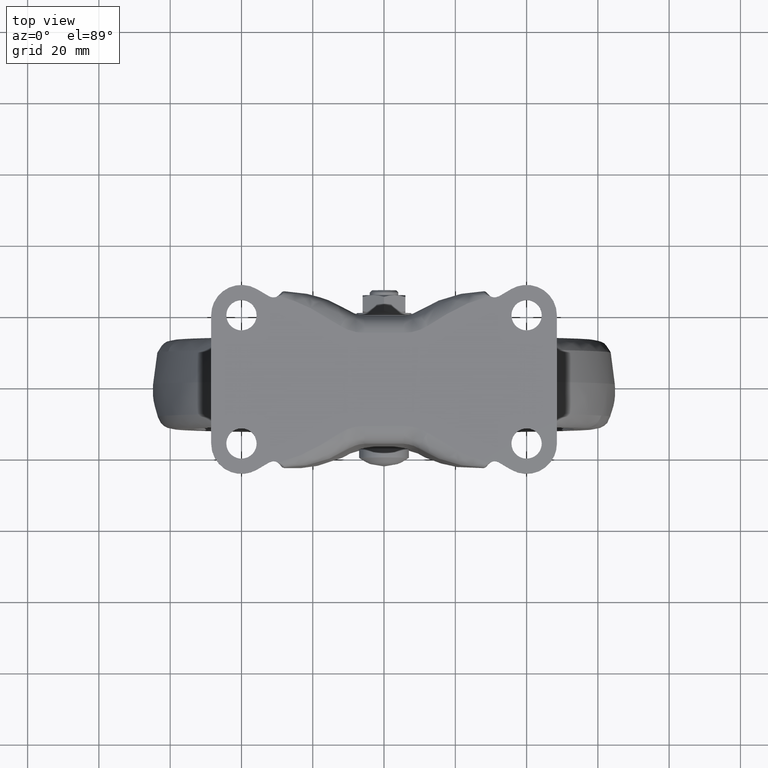
[diagram: clean part render]
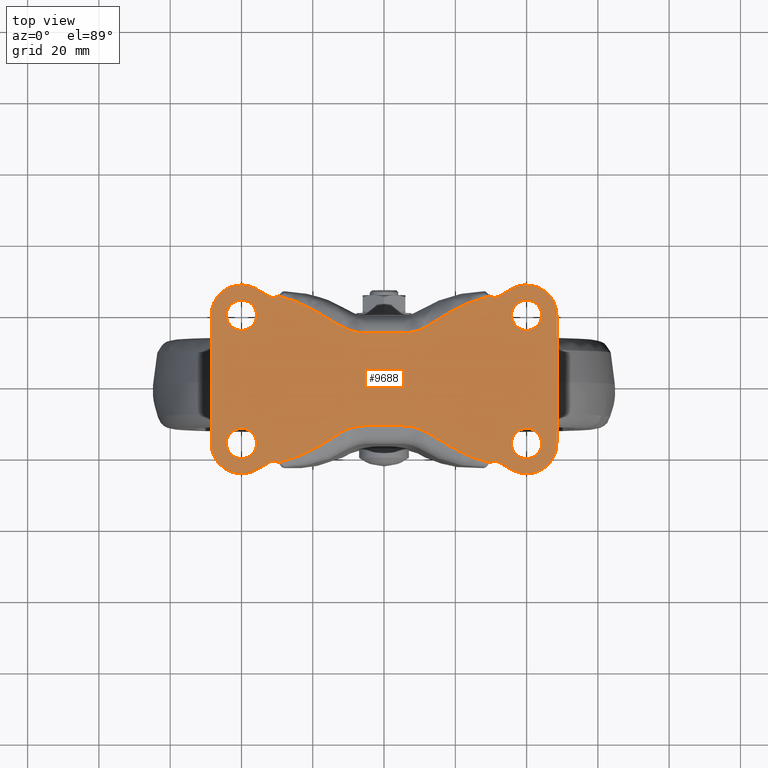
[diagram: same view with one face highlighted and labeled with its STEP entity id]
A machine part, top view. The second image highlights one B-rep face of the part: STEP entity #9688.
In plain terms, the highlighted face is a freeform B-spline surface patch.
Its self-contained STEP definition (entity closure, byte-faithful):
#5487=CARTESIAN_POINT('',(-40.259456293401172,13.757927106730190,-1.040834E-017));
#5488=VERTEX_POINT('',#5487);
#5494=CARTESIAN_POINT('',(-35.750000000000007,18.0,0.0));
#5495=VERTEX_POINT('',#5494);
#5496=CARTESIAN_POINT('',(-40.259456293401179,13.757927106730190,0.0));
#5497=CARTESIAN_POINT('',(-40.129849244208550,13.749999999999998,0.0));
#5498=CARTESIAN_POINT('',(-40.0,13.750000000000000,0.0));
#5499=CARTESIAN_POINT('',(-35.750000000000007,13.750000000000000,0.0));
#5500=CARTESIAN_POINT('',(-35.750000000000007,18.0,0.0));
#5508=(BOUNDED_CURVE()B_SPLINE_CURVE(2,(#5496,#5497,#5498,#5499,#5500),.UNSPECIFIED.,.F.,.U.)B_SPLINE_CURVE_WITH_KNOTS((3,2,3),(0.239332962226592,0.250000000000000,0.500000000000000),.UNSPECIFIED.)CURVE()GEOMETRIC_REPRESENTATION_ITEM()RATIONAL_B_SPLINE_CURVE((0.976072041640248,0.987502787885367,1.0,0.707106781186548,1.0))REPRESENTATION_ITEM(''));
#5509=EDGE_CURVE('',#5488,#5495,#5508,.T.);
#5511=CARTESIAN_POINT('',(-39.740543706598842,22.242072893269810,-1.040834E-017));
#5512=VERTEX_POINT('',#5511);
#5513=CARTESIAN_POINT('',(-35.750000000000007,18.0,0.0));
#5514=CARTESIAN_POINT('',(-35.750000000000014,21.998000783992257,0.0));
#5515=CARTESIAN_POINT('',(-39.740543706598828,22.242072893269814,0.0));
#5523=(BOUNDED_CURVE()B_SPLINE_CURVE(2,(#5513,#5514,#5515),.UNSPECIFIED.,.F.,.U.)B_SPLINE_CURVE_WITH_KNOTS((3,3),(0.500000000000000,0.739332962226592),.UNSPECIFIED.)CURVE()GEOMETRIC_REPRESENTATION_ITEM()RATIONAL_B_SPLINE_CURVE((1.0,0.719603993301180,0.976072041640247))REPRESENTATION_ITEM(''));
#5524=EDGE_CURVE('',#5495,#5512,#5523,.T.);
#5598=CARTESIAN_POINT('',(-44.250000000000000,18.0,0.0));
#5599=VERTEX_POINT('',#5598);
#5600=CARTESIAN_POINT('',(-39.740543706598842,22.242072893269814,0.0));
#5601=CARTESIAN_POINT('',(-39.870150755791471,22.250000000000000,0.0));
#5602=CARTESIAN_POINT('',(-40.0,22.250000000000000,0.0));
#5603=CARTESIAN_POINT('',(-44.250000000000000,22.249999999999996,0.0));
#5604=CARTESIAN_POINT('',(-44.250000000000000,18.0,0.0));
#5612=(BOUNDED_CURVE()B_SPLINE_CURVE(2,(#5600,#5601,#5602,#5603,#5604),.UNSPECIFIED.,.F.,.U.)B_SPLINE_CURVE_WITH_KNOTS((3,2,3),(0.739332962226592,0.750000000000000,1.0),.UNSPECIFIED.)CURVE()GEOMETRIC_REPRESENTATION_ITEM()RATIONAL_B_SPLINE_CURVE((0.976072041640248,0.987502787885368,1.0,0.707106781186548,1.0))REPRESENTATION_ITEM(''));
#5613=EDGE_CURVE('',#5512,#5599,#5612,.T.);
#5615=CARTESIAN_POINT('',(-44.250000000000000,18.0,0.0));
#5616=CARTESIAN_POINT('',(-44.249999999999986,14.001999216007741,0.0));
#5617=CARTESIAN_POINT('',(-40.259456293401179,13.757927106730188,0.0));
#5625=(BOUNDED_CURVE()B_SPLINE_CURVE(2,(#5615,#5616,#5617),.UNSPECIFIED.,.F.,.U.)B_SPLINE_CURVE_WITH_KNOTS((3,3),(0.0,0.239332962226592),.UNSPECIFIED.)CURVE()GEOMETRIC_REPRESENTATION_ITEM()RATIONAL_B_SPLINE_CURVE((1.0,0.719603993301181,0.976072041640247))REPRESENTATION_ITEM(''));
#5626=EDGE_CURVE('',#5599,#5488,#5625,.T.);
#5669=CARTESIAN_POINT('',(-40.259456293401172,-22.242072893269810,-1.040834E-017));
#5670=VERTEX_POINT('',#5669);
#5676=CARTESIAN_POINT('',(-35.750000000000007,-18.0,0.0));
#5677=VERTEX_POINT('',#5676);
#5678=CARTESIAN_POINT('',(-40.259456293401179,-22.242072893269810,0.0));
#5679=CARTESIAN_POINT('',(-40.129849244208550,-22.250000000000004,0.0));
#5680=CARTESIAN_POINT('',(-40.0,-22.250000000000000,0.0));
#5681=CARTESIAN_POINT('',(-35.750000000000007,-22.249999999999996,0.0));
#5682=CARTESIAN_POINT('',(-35.750000000000007,-18.0,0.0));
#5690=(BOUNDED_CURVE()B_SPLINE_CURVE(2,(#5678,#5679,#5680,#5681,#5682),.UNSPECIFIED.,.F.,.U.)B_SPLINE_CURVE_WITH_KNOTS((3,2,3),(0.239332962226592,0.250000000000000,0.500000000000000),.UNSPECIFIED.)CURVE()GEOMETRIC_REPRESENTATION_ITEM()RATIONAL_B_SPLINE_CURVE((0.976072041640247,0.987502787885367,1.0,0.707106781186548,1.0))REPRESENTATION_ITEM(''));
#5691=EDGE_CURVE('',#5670,#5677,#5690,.T.);
#5693=CARTESIAN_POINT('',(-39.740543706598842,-13.757927106730190,-1.040834E-017));
#5694=VERTEX_POINT('',#5693);
#5695=CARTESIAN_POINT('',(-35.750000000000007,-18.0,0.0));
#5696=CARTESIAN_POINT('',(-35.750000000000014,-14.001999216007748,0.0));
#5697=CARTESIAN_POINT('',(-39.740543706598828,-13.757927106730182,0.0));
#5705=(BOUNDED_CURVE()B_SPLINE_CURVE(2,(#5695,#5696,#5697),.UNSPECIFIED.,.F.,.U.)B_SPLINE_CURVE_WITH_KNOTS((3,3),(0.500000000000000,0.739332962226592),.UNSPECIFIED.)CURVE()GEOMETRIC_REPRESENTATION_ITEM()RATIONAL_B_SPLINE_CURVE((1.0,0.719603993301180,0.976072041640247))REPRESENTATION_ITEM(''));
#5706=EDGE_CURVE('',#5677,#5694,#5705,.T.);
#5780=CARTESIAN_POINT('',(-44.250000000000000,-18.0,0.0));
#5781=VERTEX_POINT('',#5780);
#5782=CARTESIAN_POINT('',(-39.740543706598842,-13.757927106730186,0.0));
#5783=CARTESIAN_POINT('',(-39.870150755791471,-13.749999999999996,0.0));
#5784=CARTESIAN_POINT('',(-40.0,-13.750000000000000,0.0));
#5785=CARTESIAN_POINT('',(-44.250000000000000,-13.750000000000000,0.0));
#5786=CARTESIAN_POINT('',(-44.250000000000000,-18.0,0.0));
#5794=(BOUNDED_CURVE()B_SPLINE_CURVE(2,(#5782,#5783,#5784,#5785,#5786),.UNSPECIFIED.,.F.,.U.)B_SPLINE_CURVE_WITH_KNOTS((3,2,3),(0.739332962226592,0.750000000000000,1.0),.UNSPECIFIED.)CURVE()GEOMETRIC_REPRESENTATION_ITEM()RATIONAL_B_SPLINE_CURVE((0.976072041640248,0.987502787885368,1.0,0.707106781186548,1.0))REPRESENTATION_ITEM(''));
#5795=EDGE_CURVE('',#5694,#5781,#5794,.T.);
#5797=CARTESIAN_POINT('',(-44.250000000000000,-18.0,0.0));
#5798=CARTESIAN_POINT('',(-44.249999999999986,-21.998000783992261,0.0));
#5799=CARTESIAN_POINT('',(-40.259456293401179,-22.242072893269814,0.0));
#5807=(BOUNDED_CURVE()B_SPLINE_CURVE(2,(#5797,#5798,#5799),.UNSPECIFIED.,.F.,.U.)B_SPLINE_CURVE_WITH_KNOTS((3,3),(0.0,0.239332962226592),.UNSPECIFIED.)CURVE()GEOMETRIC_REPRESENTATION_ITEM()RATIONAL_B_SPLINE_CURVE((1.0,0.719603993301181,0.976072041640247))REPRESENTATION_ITEM(''));
#5808=EDGE_CURVE('',#5781,#5670,#5807,.T.);
#5851=CARTESIAN_POINT('',(39.740543706598828,13.757927106730190,-1.040834E-017));
#5852=VERTEX_POINT('',#5851);
#5858=CARTESIAN_POINT('',(44.250000000000000,18.0,0.0));
#5859=VERTEX_POINT('',#5858);
#5860=CARTESIAN_POINT('',(39.740543706598828,13.757927106730186,0.0));
#5861=CARTESIAN_POINT('',(39.870150755791450,13.750000000000002,0.0));
#5862=CARTESIAN_POINT('',(40.0,13.750000000000000,0.0));
#5863=CARTESIAN_POINT('',(44.250000000000000,13.750000000000000,0.0));
#5864=CARTESIAN_POINT('',(44.250000000000000,18.0,0.0));
#5872=(BOUNDED_CURVE()B_SPLINE_CURVE(2,(#5860,#5861,#5862,#5863,#5864),.UNSPECIFIED.,.F.,.U.)B_SPLINE_CURVE_WITH_KNOTS((3,2,3),(0.239332962226592,0.250000000000000,0.500000000000000),.UNSPECIFIED.)CURVE()GEOMETRIC_REPRESENTATION_ITEM()RATIONAL_B_SPLINE_CURVE((0.976072041640247,0.987502787885367,1.0,0.707106781186548,1.0))REPRESENTATION_ITEM(''));
#5873=EDGE_CURVE('',#5852,#5859,#5872,.T.);
#5875=CARTESIAN_POINT('',(40.259456293401172,22.242072893269810,-1.040834E-017));
#5876=VERTEX_POINT('',#5875);
#5877=CARTESIAN_POINT('',(44.250000000000000,18.0,0.0));
#5878=CARTESIAN_POINT('',(44.249999999999993,21.998000783992257,0.0));
#5879=CARTESIAN_POINT('',(40.259456293401165,22.242072893269814,0.0));
#5887=(BOUNDED_CURVE()B_SPLINE_CURVE(2,(#5877,#5878,#5879),.UNSPECIFIED.,.F.,.U.)B_SPLINE_CURVE_WITH_KNOTS((3,3),(0.500000000000000,0.739332962226592),.UNSPECIFIED.)CURVE()GEOMETRIC_REPRESENTATION_ITEM()RATIONAL_B_SPLINE_CURVE((1.0,0.719603993301180,0.976072041640247))REPRESENTATION_ITEM(''));
#5888=EDGE_CURVE('',#5859,#5876,#5887,.T.);
#5962=CARTESIAN_POINT('',(35.750000000000007,18.0,0.0));
#5963=VERTEX_POINT('',#5962);
#5964=CARTESIAN_POINT('',(40.259456293401165,22.242072893269814,0.0));
#5965=CARTESIAN_POINT('',(40.129849244208543,22.250000000000004,0.0));
#5966=CARTESIAN_POINT('',(40.0,22.250000000000000,0.0));
#5967=CARTESIAN_POINT('',(35.750000000000007,22.249999999999996,0.0));
#5968=CARTESIAN_POINT('',(35.750000000000007,18.0,0.0));
#5976=(BOUNDED_CURVE()B_SPLINE_CURVE(2,(#5964,#5965,#5966,#5967,#5968),.UNSPECIFIED.,.F.,.U.)B_SPLINE_CURVE_WITH_KNOTS((3,2,3),(0.739332962226592,0.750000000000000,1.0),.UNSPECIFIED.)CURVE()GEOMETRIC_REPRESENTATION_ITEM()RATIONAL_B_SPLINE_CURVE((0.976072041640247,0.987502787885367,1.0,0.707106781186548,1.0))REPRESENTATION_ITEM(''));
#5977=EDGE_CURVE('',#5876,#5963,#5976,.T.);
#5979=CARTESIAN_POINT('',(35.750000000000007,18.0,0.0));
#5980=CARTESIAN_POINT('',(35.750000000000014,14.001999216007736,0.0));
#5981=CARTESIAN_POINT('',(39.740543706598835,13.757927106730181,0.0));
#5989=(BOUNDED_CURVE()B_SPLINE_CURVE(2,(#5979,#5980,#5981),.UNSPECIFIED.,.F.,.U.)B_SPLINE_CURVE_WITH_KNOTS((3,3),(0.0,0.239332962226592),.UNSPECIFIED.)CURVE()GEOMETRIC_REPRESENTATION_ITEM()RATIONAL_B_SPLINE_CURVE((1.0,0.719603993301180,0.976072041640247))REPRESENTATION_ITEM(''));
#5990=EDGE_CURVE('',#5963,#5852,#5989,.T.);
#6033=CARTESIAN_POINT('',(39.740543706598828,-22.242072893269810,-1.040834E-017));
#6034=VERTEX_POINT('',#6033);
#6040=CARTESIAN_POINT('',(44.250000000000000,-18.0,0.0));
#6041=VERTEX_POINT('',#6040);
#6042=CARTESIAN_POINT('',(39.740543706598828,-22.242072893269807,0.0));
#6043=CARTESIAN_POINT('',(39.870150755791450,-22.250000000000004,0.0));
#6044=CARTESIAN_POINT('',(40.0,-22.250000000000000,0.0));
#6045=CARTESIAN_POINT('',(44.250000000000000,-22.249999999999996,0.0));
#6046=CARTESIAN_POINT('',(44.250000000000000,-18.0,0.0));
#6054=(BOUNDED_CURVE()B_SPLINE_CURVE(2,(#6042,#6043,#6044,#6045,#6046),.UNSPECIFIED.,.F.,.U.)B_SPLINE_CURVE_WITH_KNOTS((3,2,3),(0.239332962226592,0.250000000000000,0.500000000000000),.UNSPECIFIED.)CURVE()GEOMETRIC_REPRESENTATION_ITEM()RATIONAL_B_SPLINE_CURVE((0.976072041640247,0.987502787885367,1.0,0.707106781186548,1.0))REPRESENTATION_ITEM(''));
#6055=EDGE_CURVE('',#6034,#6041,#6054,.T.);
#6057=CARTESIAN_POINT('',(40.259456293401172,-13.757927106730190,-1.040834E-017));
#6058=VERTEX_POINT('',#6057);
#6059=CARTESIAN_POINT('',(44.250000000000000,-18.0,0.0));
#6060=CARTESIAN_POINT('',(44.249999999999993,-14.001999216007748,0.0));
#6061=CARTESIAN_POINT('',(40.259456293401165,-13.757927106730182,0.0));
#6069=(BOUNDED_CURVE()B_SPLINE_CURVE(2,(#6059,#6060,#6061),.UNSPECIFIED.,.F.,.U.)B_SPLINE_CURVE_WITH_KNOTS((3,3),(0.500000000000000,0.739332962226592),.UNSPECIFIED.)CURVE()GEOMETRIC_REPRESENTATION_ITEM()RATIONAL_B_SPLINE_CURVE((1.0,0.719603993301180,0.976072041640247))REPRESENTATION_ITEM(''));
#6070=EDGE_CURVE('',#6041,#6058,#6069,.T.);
#6144=CARTESIAN_POINT('',(35.750000000000007,-18.0,0.0));
#6145=VERTEX_POINT('',#6144);
#6146=CARTESIAN_POINT('',(40.259456293401165,-13.757927106730182,0.0));
#6147=CARTESIAN_POINT('',(40.129849244208543,-13.749999999999998,0.0));
#6148=CARTESIAN_POINT('',(40.0,-13.750000000000000,0.0));
#6149=CARTESIAN_POINT('',(35.750000000000007,-13.750000000000000,0.0));
#6150=CARTESIAN_POINT('',(35.750000000000007,-18.0,0.0));
#6158=(BOUNDED_CURVE()B_SPLINE_CURVE(2,(#6146,#6147,#6148,#6149,#6150),.UNSPECIFIED.,.F.,.U.)B_SPLINE_CURVE_WITH_KNOTS((3,2,3),(0.739332962226592,0.750000000000000,1.0),.UNSPECIFIED.)CURVE()GEOMETRIC_REPRESENTATION_ITEM()RATIONAL_B_SPLINE_CURVE((0.976072041640247,0.987502787885367,1.0,0.707106781186548,1.0))REPRESENTATION_ITEM(''));
#6159=EDGE_CURVE('',#6058,#6145,#6158,.T.);
#6161=CARTESIAN_POINT('',(35.750000000000007,-18.0,0.0));
#6162=CARTESIAN_POINT('',(35.750000000000000,-21.998000783992261,0.0));
#6163=CARTESIAN_POINT('',(39.740543706598835,-22.242072893269818,0.0));
#6171=(BOUNDED_CURVE()B_SPLINE_CURVE(2,(#6161,#6162,#6163),.UNSPECIFIED.,.F.,.U.)B_SPLINE_CURVE_WITH_KNOTS((3,3),(0.0,0.239332962226592),.UNSPECIFIED.)CURVE()GEOMETRIC_REPRESENTATION_ITEM()RATIONAL_B_SPLINE_CURVE((1.0,0.719603993301180,0.976072041640248))REPRESENTATION_ITEM(''));
#6172=EDGE_CURVE('',#6145,#6034,#6171,.T.);
#6971=CARTESIAN_POINT('',(-32.305131926477451,23.342988518921199,0.0));
#6972=VERTEX_POINT('',#6971);
#6978=CARTESIAN_POINT('',(-29.691194753982600,23.395897286951399,0.0));
#6979=VERTEX_POINT('',#6978);
#6980=CARTESIAN_POINT('',(-32.305131926477458,23.342988518921189,0.0));
#6981=CARTESIAN_POINT('',(-30.981935167362039,22.567696313843811,0.0));
#6982=CARTESIAN_POINT('',(-29.691194753982600,23.395897286951399,0.0));
#6990=(BOUNDED_CURVE()B_SPLINE_CURVE(2,(#6980,#6981,#6982),.UNSPECIFIED.,.F.,.U.)CURVE()GEOMETRIC_REPRESENTATION_ITEM()QUASI_UNIFORM_CURVE()RATIONAL_B_SPLINE_CURVE((1.0,0.852397398412621,1.0))REPRESENTATION_ITEM(''));
#6991=EDGE_CURVE('',#6972,#6979,#6990,.T.);
#7042=CARTESIAN_POINT('',(-35.702930649976352,-25.333839035668099,0.0));
#7043=VERTEX_POINT('',#7042);
#7056=CARTESIAN_POINT('',(-32.305131999999887,-23.342988000000052,0.0));
#7057=VERTEX_POINT('',#7056);
#7063=CARTESIAN_POINT('',(-35.702930649976352,-25.333839035668099,0.0));
#7064=CARTESIAN_POINT('',(-32.305131999999887,-23.342988000000052,0.0));
#7065=QUASI_UNIFORM_CURVE('',1,(#7063,#7064),.UNSPECIFIED.,.F.,.U.);
#7066=EDGE_CURVE('',#7043,#7057,#7065,.T.);
#7087=CARTESIAN_POINT('',(-48.500000000000000,-18.0,0.0));
#7088=VERTEX_POINT('',#7087);
#7112=CARTESIAN_POINT('',(-48.500000000000000,-18.0,0.0));
#7113=CARTESIAN_POINT('',(-48.500012119351439,-18.465004679879719,0.0));
#7114=CARTESIAN_POINT('',(-48.408285606426666,-19.581078305167061,0.0));
#7115=CARTESIAN_POINT('',(-47.982895431035509,-21.066034866773251,0.0));
#7116=CARTESIAN_POINT('',(-47.183920327940157,-22.647675845518972,0.0));
#7117=CARTESIAN_POINT('',(-46.201337024474277,-23.901597376511319,0.0));
#7118=CARTESIAN_POINT('',(-45.024444127413062,-24.894478182548010,0.0));
#7119=CARTESIAN_POINT('',(-43.755673906070932,-25.678147192276061,0.0));
#7120=CARTESIAN_POINT('',(-42.142659384417293,-26.308887591036068,0.0));
#7121=CARTESIAN_POINT('',(-40.378269304297170,-26.547893156193279,0.0));
#7122=CARTESIAN_POINT('',(-38.609724016134642,-26.437670777497811,0.0));
#7123=CARTESIAN_POINT('',(-37.113444606678463,-26.053999232286280,0.0));
#7124=CARTESIAN_POINT('',(-36.104125632173812,-25.568922049395528,0.0));
#7125=CARTESIAN_POINT('',(-35.702930649976352,-25.333839035668099,0.0));
#7126=B_SPLINE_CURVE_WITH_KNOTS('',3,(#7112,#7113,#7114,#7115,#7116,#7117,#7118,#7119,#7120,#7121,#7122,#7123,#7124,#7125),.UNSPECIFIED.,.F.,.U.,(4,1,1,1,1,1,1,1,1,1,1,4),(0.000000093116608,1.395043679923504,3.348185557759010,4.603763475651146,6.696402258153636,8.091507030655626,9.207498426182109,11.160629513936151,13.253247178738510,14.508840336484180,16.461992883399901,17.857010844626782),.UNSPECIFIED.);
#7127=EDGE_CURVE('',#7088,#7043,#7126,.T.);
#7139=CARTESIAN_POINT('',(-48.500000000000000,18.0,0.0));
#7140=VERTEX_POINT('',#7139);
#7152=CARTESIAN_POINT('',(-48.500000000000000,18.0,0.0));
#7153=CARTESIAN_POINT('',(-48.500000000000000,-18.0,0.0));
#7154=QUASI_UNIFORM_CURVE('',1,(#7152,#7153),.UNSPECIFIED.,.F.,.U.);
#7155=EDGE_CURVE('',#7140,#7088,#7154,.T.);
#7176=CARTESIAN_POINT('',(-35.702930649976352,25.333839035668099,0.0));
#7177=VERTEX_POINT('',#7176);
#7201=CARTESIAN_POINT('',(-35.702930649976352,25.333839035668099,0.0));
#7202=CARTESIAN_POINT('',(-36.505147128571252,25.804584247689679,0.0));
#7203=CARTESIAN_POINT('',(-37.737665972099101,26.275814390530162,0.0));
#7204=CARTESIAN_POINT('',(-39.584599757868823,26.528613494884080,0.0));
#7205=CARTESIAN_POINT('',(-41.172754671951417,26.484230970080048,0.0));
#7206=CARTESIAN_POINT('',(-42.990857144161161,26.036668233501150,0.0));
#7207=CARTESIAN_POINT('',(-44.742673550087218,25.144246424804582,0.0));
#7208=CARTESIAN_POINT('',(-46.352560153292920,23.785820528024740,0.0));
#7209=CARTESIAN_POINT('',(-47.599771082556998,22.022228692112289,0.0));
#7210=CARTESIAN_POINT('',(-48.344320063395593,19.999533834572631,0.0));
#7211=CARTESIAN_POINT('',(-48.500128933605517,18.651027307411319,0.0));
#7212=CARTESIAN_POINT('',(-48.500000000000000,18.0,0.0));
#7213=B_SPLINE_CURVE_WITH_KNOTS('',3,(#7201,#7202,#7203,#7204,#7205,#7206,#7207,#7208,#7209,#7210,#7211,#7212),.UNSPECIFIED.,.F.,.U.,(4,1,1,1,1,1,1,1,1,4),(0.000000093124047,2.790131509048246,3.906210883516810,5.580339912556827,7.533486358636417,9.486494314643609,11.439624501471901,13.811288105225760,15.903929388677030,17.857010844626661),.UNSPECIFIED.);
#7214=EDGE_CURVE('',#7177,#7140,#7213,.T.);
#7231=CARTESIAN_POINT('',(-32.305131926477451,23.342988518921199,0.0));
#7232=CARTESIAN_POINT('',(-35.702930649976352,25.333839035668099,0.0));
#7233=QUASI_UNIFORM_CURVE('',1,(#7231,#7232),.UNSPECIFIED.,.F.,.U.);
#7234=EDGE_CURVE('',#6972,#7177,#7233,.T.);
#7514=CARTESIAN_POINT('',(29.691194698723098,23.395897322408651,0.0));
#7515=VERTEX_POINT('',#7514);
#8495=CARTESIAN_POINT('',(-12.193367492635820,14.980134089321320,0.0));
#8496=VERTEX_POINT('',#8495);
#8497=CARTESIAN_POINT('',(-12.193367492635820,14.980134089321320,0.0));
#8498=CARTESIAN_POINT('',(-12.644683961857369,15.265283218264541,0.0));
#8499=CARTESIAN_POINT('',(-13.676913264585750,15.915743370458109,0.0));
#8500=CARTESIAN_POINT('',(-14.968495275126090,16.726705521468169,0.0));
#8501=CARTESIAN_POINT('',(-15.940408634774650,17.329484494553380,0.0));
#8502=CARTESIAN_POINT('',(-17.331526164002550,18.172111802245190,0.0));
#8503=CARTESIAN_POINT('',(-18.739184989706398,18.988256692938549,0.0));
#8504=CARTESIAN_POINT('',(-21.386011718927332,20.398267037168608,0.0));
#8505=CARTESIAN_POINT('',(-24.339573036254539,21.772596748531690,0.0));
#8506=CARTESIAN_POINT('',(-27.231229522769748,22.756660054624579,0.0));
#8507=CARTESIAN_POINT('',(-28.753865007983439,23.163531545815420,0.0));
#8508=CARTESIAN_POINT('',(-28.950781120018370,23.214052832188411,0.0));
#8509=CARTESIAN_POINT('',(-29.246167182897800,23.289975602117110,0.0));
#8510=CARTESIAN_POINT('',(-29.493194122243938,23.349768327488519,0.0));
#8511=CARTESIAN_POINT('',(-29.691194753982600,23.395897286951399,0.0));
#8512=B_SPLINE_CURVE_WITH_KNOTS('',3,(#8497,#8498,#8499,#8500,#8501,#8502,#8503,#8504,#8505,#8506,#8507,#8508,#8509,#8510,#8511),.UNSPECIFIED.,.F.,.U.,(4,1,1,1,1,1,1,1,1,1,1,1,4),(0.000025893802899,1.601578710544867,3.660273137038903,4.575247766444321,5.032473167905755,8.539825810517259,9.454907189673643,14.029784347783730,18.299648294574300,18.604569536598589,18.757094969552551,18.909620402506491,19.519533315123159),.UNSPECIFIED.);
#8513=EDGE_CURVE('',#8496,#6979,#8512,.T.);
#8548=CARTESIAN_POINT('',(-5.520441999999920,13.050000000000120,0.0));
#8549=VERTEX_POINT('',#8548);
#8565=CARTESIAN_POINT('',(-5.520441999999920,13.050000000000120,0.0));
#8566=CARTESIAN_POINT('',(-9.136048999229999,13.049999999999995,0.0));
#8567=CARTESIAN_POINT('',(-12.193367492635881,14.980134089321229,0.0));
#8575=(BOUNDED_CURVE()B_SPLINE_CURVE(2,(#8565,#8566,#8567),.UNSPECIFIED.,.F.,.U.)CURVE()GEOMETRIC_REPRESENTATION_ITEM()QUASI_UNIFORM_CURVE()RATIONAL_B_SPLINE_CURVE((1.0,0.960622004967173,1.0))REPRESENTATION_ITEM(''));
#8576=EDGE_CURVE('',#8549,#8496,#8575,.T.);
#8595=CARTESIAN_POINT('',(5.520442000000000,13.050000000000120,0.0));
#8596=VERTEX_POINT('',#8595);
#8612=CARTESIAN_POINT('',(5.520442000000000,13.050000000000120,0.0));
#8613=CARTESIAN_POINT('',(-5.520441999999920,13.050000000000120,0.0));
#8614=QUASI_UNIFORM_CURVE('',1,(#8612,#8613),.UNSPECIFIED.,.F.,.U.);
#8615=EDGE_CURVE('',#8596,#8549,#8614,.T.);
#8637=CARTESIAN_POINT('',(12.193367168052660,14.980133884406721,0.0));
#8638=VERTEX_POINT('',#8637);
#8654=CARTESIAN_POINT('',(12.193367168052660,14.980133884406721,0.0));
#8655=CARTESIAN_POINT('',(9.136048791245285,13.050000000000004,0.0));
#8656=CARTESIAN_POINT('',(5.520442000000000,13.050000000000001,0.0));
#8664=(BOUNDED_CURVE()B_SPLINE_CURVE(2,(#8654,#8655,#8656),.UNSPECIFIED.,.F.,.U.)CURVE()GEOMETRIC_REPRESENTATION_ITEM()QUASI_UNIFORM_CURVE()RATIONAL_B_SPLINE_CURVE((1.0,0.960622009233463,1.0))REPRESENTATION_ITEM(''));
#8665=EDGE_CURVE('',#8638,#8596,#8664,.T.);
#8720=CARTESIAN_POINT('',(29.691194698723098,23.395897322408651,0.0));
#8721=CARTESIAN_POINT('',(29.443718096431130,23.338194113899679,0.0));
#8722=CARTESIAN_POINT('',(29.147440971788509,23.265866785695881,0.0));
#8723=CARTESIAN_POINT('',(28.803261895879071,23.175740634240370,0.0));
#8724=CARTESIAN_POINT('',(28.606534149589770,23.124329264890189,0.0));
#8725=CARTESIAN_POINT('',(28.067002515574469,22.977385532341540,0.0));
#8726=CARTESIAN_POINT('',(27.481985147851720,22.804244792264360,0.0));
#8727=CARTESIAN_POINT('',(26.949187734986761,22.634513607135631,0.0));
#8728=CARTESIAN_POINT('',(26.756091137532479,22.570800402924782,0.0));
#8729=CARTESIAN_POINT('',(26.562749916339911,22.507977103823428,0.0));
#8730=CARTESIAN_POINT('',(26.370457202583960,22.441999067269411,0.0));
#8731=CARTESIAN_POINT('',(26.129982187055710,22.360004207756528,0.0));
#8732=CARTESIAN_POINT('',(24.067265723828680,21.635685083383240,0.0));
#8733=CARTESIAN_POINT('',(22.020538395762880,20.720315707006929,0.0));
#8734=CARTESIAN_POINT('',(19.590515169498669,19.444563051633160,0.0));
#8735=CARTESIAN_POINT('',(18.343204285765740,18.758510703609559,0.0));
#8736=CARTESIAN_POINT('',(16.961670235721272,17.948929976872630,0.0));
#8737=CARTESIAN_POINT('',(15.962176843053101,17.342572495815901,0.0));
#8738=CARTESIAN_POINT('',(15.335671470801930,16.954426726334329,0.0));
#8739=CARTESIAN_POINT('',(14.602683267057291,16.496745173561990,0.0));
#8740=CARTESIAN_POINT('',(13.816890844544620,16.003634415103871,0.0));
#8741=CARTESIAN_POINT('',(12.978382787294001,15.474817825799200,0.0));
#8742=CARTESIAN_POINT('',(12.483501062299110,15.163462206758201,0.0));
#8743=CARTESIAN_POINT('',(12.193367168052660,14.980133884406721,0.0));
#8744=B_SPLINE_CURVE_WITH_KNOTS('',3,(#8720,#8721,#8722,#8723,#8724,#8725,#8726,#8727,#8728,#8729,#8730,#8731,#8732,#8733,#8734,#8735,#8736,#8737,#8738,#8739,#8740,#8741,#8742,#8743),.UNSPECIFIED.,.F.,.U.,(4,1,1,1,1,1,1,1,1,1,1,1,1,1,1,1,1,1,1,1,1,4),(0.000058716428256,0.762410353293028,0.914910168314830,1.067409983336628,1.372411943350961,2.592429895907831,2.897433804391174,3.049935085262593,3.202436366134016,3.507300266907494,3.659794503898981,3.964783419835372,10.064617210664000,10.369668518578621,12.199701504892680,14.334560291253220,15.173051765429269,15.706827119829940,16.545523563292200,17.765486772923300,18.489922627063599,19.519525210609519),.UNSPECIFIED.);
#8745=EDGE_CURVE('',#7515,#8638,#8744,.T.);
#9458=CARTESIAN_POINT('',(-53.345149811995199,29.143084463984501,0.0));
#9459=CARTESIAN_POINT('',(53.345152413737928,29.143084463984501,0.0));
#9460=CARTESIAN_POINT('',(-53.345149811995192,-29.143086426076891,0.0));
#9461=CARTESIAN_POINT('',(53.345152413737928,-29.143086426076891,0.0));
#9462=B_SPLINE_SURFACE_WITH_KNOTS('',1,1,((#9458,#9460),(#9459,#9461)),.UNSPECIFIED.,.F.,.F.,.U.,(2,2),(2,2),(0.0,106.690302225733110),(0.0,58.286170890061392),.UNSPECIFIED.);
#9463=ORIENTED_EDGE('',*,*,#8576,.T.);
#9464=ORIENTED_EDGE('',*,*,#8513,.T.);
#9465=ORIENTED_EDGE('',*,*,#6991,.F.);
#9466=ORIENTED_EDGE('',*,*,#7234,.T.);
#9467=ORIENTED_EDGE('',*,*,#7214,.T.);
#9468=ORIENTED_EDGE('',*,*,#7155,.T.);
#9469=ORIENTED_EDGE('',*,*,#7127,.T.);
#9470=ORIENTED_EDGE('',*,*,#7066,.T.);
#9471=CARTESIAN_POINT('',(-29.691194659870050,-23.395897347338551,0.0));
#9472=VERTEX_POINT('',#9471);
#9473=CARTESIAN_POINT('',(-29.691194659870050,-23.395897347338540,0.0));
#9474=CARTESIAN_POINT('',(-30.981934985771705,-22.567696348859375,0.0));
#9475=CARTESIAN_POINT('',(-32.305131754866828,-23.342988418370481,0.0));
#9483=(BOUNDED_CURVE()B_SPLINE_CURVE(2,(#9473,#9474,#9475),.UNSPECIFIED.,.F.,.U.)CURVE()GEOMETRIC_REPRESENTATION_ITEM()QUASI_UNIFORM_CURVE()RATIONAL_B_SPLINE_CURVE((1.0,0.852397407519174,1.0))REPRESENTATION_ITEM(''));
#9484=EDGE_CURVE('',#9472,#7057,#9483,.T.);
#9485=ORIENTED_EDGE('',*,*,#9484,.F.);
#9486=CARTESIAN_POINT('',(-12.193367883073620,-14.980134335810961,0.0));
#9487=VERTEX_POINT('',#9486);
#9488=CARTESIAN_POINT('',(-29.691194659870050,-23.395897347338551,0.0));
#9489=CARTESIAN_POINT('',(-29.443702523428929,-23.338254040441910,0.0));
#9490=CARTESIAN_POINT('',(-29.147473578904570,-23.265741161063669,0.0));
#9491=CARTESIAN_POINT('',(-28.803259186091910,-23.175751140488920,0.0));
#9492=CARTESIAN_POINT('',(-28.606533663108220,-23.124330772174542,0.0));
#9493=CARTESIAN_POINT('',(-28.067006519427391,-22.977373838095190,0.0));
#9494=CARTESIAN_POINT('',(-27.481975066405841,-22.804274798453179,0.0));
#9495=CARTESIAN_POINT('',(-26.949195250660161,-22.634492807546138,0.0));
#9496=CARTESIAN_POINT('',(-26.756083926578061,-22.570822222627950,0.0));
#9497=CARTESIAN_POINT('',(-26.562750898940099,-22.507970939130519,0.0));
#9498=CARTESIAN_POINT('',(-26.370460073270898,-22.442002349814150,0.0));
#9499=CARTESIAN_POINT('',(-26.129951558180789,-22.359978156755449,0.0));
#9500=CARTESIAN_POINT('',(-25.122721287696930,-22.006318397556790,0.0));
#9501=CARTESIAN_POINT('',(-23.136773397669309,-21.219515375715869,0.0));
#9502=CARTESIAN_POINT('',(-20.660469602690501,-20.030900942322141,0.0));
#9503=CARTESIAN_POINT('',(-18.431019155775520,-18.809787569001710,0.0));
#9504=CARTESIAN_POINT('',(-16.961667657285211,-17.948936822969159,0.0));
#9505=CARTESIAN_POINT('',(-15.962177160121721,-17.342572865002239,0.0));
#9506=CARTESIAN_POINT('',(-15.335672874705519,-16.954425853996160,0.0));
#9507=CARTESIAN_POINT('',(-14.602682782205630,-16.496747252773609,0.0));
#9508=CARTESIAN_POINT('',(-13.816894113893261,-16.003630639212371,0.0));
#9509=CARTESIAN_POINT('',(-12.978377494676380,-15.474827732407901,0.0));
#9510=CARTESIAN_POINT('',(-12.483507416338631,-15.163453672164570,0.0));
#9511=CARTESIAN_POINT('',(-12.193367883073620,-14.980134335810961,0.0));
#9512=B_SPLINE_CURVE_WITH_KNOTS('',3,(#9488,#9489,#9490,#9491,#9492,#9493,#9494,#9495,#9496,#9497,#9498,#9499,#9500,#9501,#9502,#9503,#9504,#9505,#9506,#9507,#9508,#9509,#9510,#9511),.UNSPECIFIED.,.F.,.U.,(4,1,1,1,1,1,1,1,1,1,1,1,1,1,1,1,1,1,1,1,1,4),(0.000058720006475,0.762410319470234,0.914910127017855,1.067409934565458,1.372411879632331,2.592429772401474,2.897433665936955,3.049934939334026,3.202436212731112,3.507300098491728,3.659794328006955,3.964783228990525,6.709704960072328,10.064616720741270,12.199700910238080,14.334559591968381,15.173051024473450,15.706826355523511,16.545522754072941,17.765485904472840,18.489921723229770,19.519524257192661),.UNSPECIFIED.);
#9513=EDGE_CURVE('',#9472,#9487,#9512,.T.);
#9514=ORIENTED_EDGE('',*,*,#9513,.T.);
#9515=CARTESIAN_POINT('',(-5.520441999999920,-13.050000000000120,0.0));
#9516=VERTEX_POINT('',#9515);
#9517=CARTESIAN_POINT('',(-12.193367883073620,-14.980134335810961,0.0));
#9518=CARTESIAN_POINT('',(-9.136049249412734,-13.049999999999995,0.0));
#9519=CARTESIAN_POINT('',(-5.520441999999920,-13.050000000000001,0.0));
#9527=(BOUNDED_CURVE()B_SPLINE_CURVE(2,(#9517,#9518,#9519),.UNSPECIFIED.,.F.,.U.)CURVE()GEOMETRIC_REPRESENTATION_ITEM()QUASI_UNIFORM_CURVE()RATIONAL_B_SPLINE_CURVE((1.0,0.960621999835297,1.0))REPRESENTATION_ITEM(''));
#9528=EDGE_CURVE('',#9487,#9516,#9527,.T.);
#9529=ORIENTED_EDGE('',*,*,#9528,.T.);
#9530=CARTESIAN_POINT('',(5.520442000000000,-13.050000000000120,0.0));
#9531=VERTEX_POINT('',#9530);
#9532=CARTESIAN_POINT('',(-5.520441999999920,-13.050000000000120,0.0));
#9533=CARTESIAN_POINT('',(5.520442000000000,-13.050000000000120,0.0));
#9534=QUASI_UNIFORM_CURVE('',1,(#9532,#9533),.UNSPECIFIED.,.F.,.U.);
#9535=EDGE_CURVE('',#9516,#9531,#9534,.T.);
#9536=ORIENTED_EDGE('',*,*,#9535,.T.);
#9537=CARTESIAN_POINT('',(12.193367392894221,-14.980134026352800,0.0));
#9538=VERTEX_POINT('',#9537);
#9539=CARTESIAN_POINT('',(5.520442000000000,-13.050000000000120,0.0));
#9540=CARTESIAN_POINT('',(9.136048935318112,-13.049999999999994,0.0));
#9541=CARTESIAN_POINT('',(12.193367392894279,-14.980134026352710,0.0));
#9549=(BOUNDED_CURVE()B_SPLINE_CURVE(2,(#9539,#9540,#9541),.UNSPECIFIED.,.F.,.U.)CURVE()GEOMETRIC_REPRESENTATION_ITEM()QUASI_UNIFORM_CURVE()RATIONAL_B_SPLINE_CURVE((1.0,0.960622006278168,1.0))REPRESENTATION_ITEM(''));
#9550=EDGE_CURVE('',#9531,#9538,#9549,.T.);
#9551=ORIENTED_EDGE('',*,*,#9550,.T.);
#9552=CARTESIAN_POINT('',(29.691194479038899,-23.395897463368598,0.0));
#9553=VERTEX_POINT('',#9552);
#9554=CARTESIAN_POINT('',(12.193367392894221,-14.980134026352800,0.0));
#9555=CARTESIAN_POINT('',(12.967133755633100,-15.468677058853990,0.0));
#9556=CARTESIAN_POINT('',(13.999339142287070,-16.119182854353468,0.0));
#9557=CARTESIAN_POINT('',(15.292445889319110,-16.927708253769740,0.0));
#9558=CARTESIAN_POINT('',(15.940414142066730,-17.329468060787232,0.0));
#9559=CARTESIAN_POINT('',(17.331535930735509,-18.172135198721140,0.0));
#9560=CARTESIAN_POINT('',(18.739151554263451,-18.988200738047269,0.0));
#9561=CARTESIAN_POINT('',(21.027186635299980,-20.207185348492999,0.0));
#9562=CARTESIAN_POINT('',(23.044997756772879,-21.175505213668281,0.0));
#9563=CARTESIAN_POINT('',(25.783328450445421,-22.271589792547040,0.0));
#9564=CARTESIAN_POINT('',(27.624286406015901,-22.861647542645070,0.0));
#9565=CARTESIAN_POINT('',(28.753840506127329,-23.163527480234251,0.0));
#9566=CARTESIAN_POINT('',(28.950781156752029,-23.214053080490292,0.0));
#9567=CARTESIAN_POINT('',(29.246166810800879,-23.289975763763760,0.0));
#9568=CARTESIAN_POINT('',(29.493193861563132,-23.349768509052200,0.0));
#9569=CARTESIAN_POINT('',(29.691194479038899,-23.395897463368598,0.0));
#9570=B_SPLINE_CURVE_WITH_KNOTS('',3,(#9554,#9555,#9556,#9557,#9558,#9559,#9560,#9561,#9562,#9563,#9564,#9565,#9566,#9567,#9568,#9569),.UNSPECIFIED.,.F.,.U.,(4,1,1,1,1,1,1,1,1,1,1,1,1,4),(0.000025893875971,2.745300636269452,3.660273138432098,4.575247767081967,5.032473168366510,8.539825811256700,9.454907190473971,12.809819207306290,15.249745494789099,18.299648296051149,18.604569538097721,18.757094971066120,18.909620404034520,19.519533316699281),.UNSPECIFIED.);
#9571=EDGE_CURVE('',#9538,#9553,#9570,.T.);
#9572=ORIENTED_EDGE('',*,*,#9571,.T.);
#9573=CARTESIAN_POINT('',(32.305131926477650,-23.342988518921199,0.0));
#9574=VERTEX_POINT('',#9573);
#9575=CARTESIAN_POINT('',(32.305131926477657,-23.342988518921189,0.0));
#9576=CARTESIAN_POINT('',(30.981934973400801,-22.567696200197233,0.0));
#9577=CARTESIAN_POINT('',(29.691194479038909,-23.395897463368620,0.0));
#9585=(BOUNDED_CURVE()B_SPLINE_CURVE(2,(#9575,#9576,#9577),.UNSPECIFIED.,.F.,.U.)CURVE()GEOMETRIC_REPRESENTATION_ITEM()QUASI_UNIFORM_CURVE()RATIONAL_B_SPLINE_CURVE((1.0,0.852397364249207,1.0))REPRESENTATION_ITEM(''));
#9586=EDGE_CURVE('',#9574,#9553,#9585,.T.);
#9587=ORIENTED_EDGE('',*,*,#9586,.F.);
#9588=CARTESIAN_POINT('',(35.702930000000002,-25.333839000000101,0.0));
#9589=VERTEX_POINT('',#9588);
#9590=CARTESIAN_POINT('',(32.305131926477650,-23.342988518921199,0.0));
#9591=CARTESIAN_POINT('',(35.702930000000002,-25.333839000000101,0.0));
#9592=QUASI_UNIFORM_CURVE('',1,(#9590,#9591),.UNSPECIFIED.,.F.,.U.);
#9593=EDGE_CURVE('',#9574,#9589,#9592,.T.);
#9594=ORIENTED_EDGE('',*,*,#9593,.T.);
#9595=CARTESIAN_POINT('',(48.500000000000000,-18.0,0.0));
#9596=VERTEX_POINT('',#9595);
#9597=CARTESIAN_POINT('',(35.702930000000002,-25.333839000000101,0.0));
#9598=CARTESIAN_POINT('',(36.264574713868093,-25.663075545940931,0.0));
#9599=CARTESIAN_POINT('',(37.463998474312518,-26.191485910119280,0.0));
#9600=CARTESIAN_POINT('',(39.304314837589189,-26.536630064585140,0.0));
#9601=CARTESIAN_POINT('',(40.985892577717763,-26.489353978529660,0.0));
#9602=CARTESIAN_POINT('',(42.537940874878252,-26.160911204936060,0.0));
#9603=CARTESIAN_POINT('',(44.094410735417810,-25.522815876234549,0.0));
#9604=CARTESIAN_POINT('',(45.675800713468860,-24.435368475693949,0.0));
#9605=CARTESIAN_POINT('',(46.894844088746623,-23.074051011711369,0.0));
#9606=CARTESIAN_POINT('',(47.690120714484031,-21.701348181080121,0.0));
#9607=CARTESIAN_POINT('',(48.312974157546783,-20.092396538973389,0.0));
#9608=CARTESIAN_POINT('',(48.500387976490117,-18.837086494813320,0.0));
#9609=CARTESIAN_POINT('',(48.500000000000000,-18.0,0.0));
#9610=B_SPLINE_CURVE_WITH_KNOTS('',3,(#9597,#9598,#9599,#9600,#9601,#9602,#9603,#9604,#9605,#9606,#9607,#9608,#9609),.UNSPECIFIED.,.F.,.U.,(4,1,1,1,1,1,1,1,1,1,4),(0.000000093107250,1.953080645014891,3.906211032492807,5.580340125404016,6.975437101530112,8.649507702042877,10.602551326174501,12.695218392211450,14.090298922951090,15.345892377359821,17.857011525748248),.UNSPECIFIED.);
#9611=EDGE_CURVE('',#9589,#9596,#9610,.T.);
#9612=ORIENTED_EDGE('',*,*,#9611,.T.);
#9613=CARTESIAN_POINT('',(48.500000000000000,18.0,0.0));
#9614=VERTEX_POINT('',#9613);
#9615=CARTESIAN_POINT('',(48.500000000000000,-18.0,0.0));
#9616=CARTESIAN_POINT('',(48.500000000000000,18.0,0.0));
#9617=QUASI_UNIFORM_CURVE('',1,(#9615,#9616),.UNSPECIFIED.,.F.,.U.);
#9618=EDGE_CURVE('',#9596,#9614,#9617,.T.);
#9619=ORIENTED_EDGE('',*,*,#9618,.T.);
#9620=CARTESIAN_POINT('',(35.702930649976402,25.333839035668099,0.0));
#9621=VERTEX_POINT('',#9620);
#9622=CARTESIAN_POINT('',(48.500000000000000,18.0,0.0));
#9623=CARTESIAN_POINT('',(48.500220002470940,18.744048092294360,0.0));
#9624=CARTESIAN_POINT('',(48.352504959677859,19.859963629083278,0.0));
#9625=CARTESIAN_POINT('',(47.856602974218468,21.315714684463430,0.0));
#9626=CARTESIAN_POINT('',(47.183986136122577,22.647694596679759,0.0));
#9627=CARTESIAN_POINT('',(46.143513640465621,23.975354450558331,0.0));
#9628=CARTESIAN_POINT('',(44.876378618634376,25.009360537590549,0.0));
#9629=CARTESIAN_POINT('',(43.582506434986428,25.750861859791129,0.0));
#9630=CARTESIAN_POINT('',(42.356328686332361,26.207193055888091,0.0));
#9631=CARTESIAN_POINT('',(40.755226159769663,26.518772656724710,0.0));
#9632=CARTESIAN_POINT('',(39.068438897793939,26.524576033735489,0.0));
#9633=CARTESIAN_POINT('',(37.245489109039610,26.104527745559832,0.0));
#9634=CARTESIAN_POINT('',(36.184356552841919,25.615983473684022,0.0));
#9635=CARTESIAN_POINT('',(35.702930649976402,25.333839035668099,0.0));
#9636=B_SPLINE_CURVE_WITH_KNOTS('',3,(#9622,#9623,#9624,#9625,#9626,#9627,#9628,#9629,#9630,#9631,#9632,#9633,#9634,#9635),.UNSPECIFIED.,.F.,.U.,(4,1,1,1,1,1,1,1,1,1,1,4),(0.000000093100418,2.232083642753874,3.348185557748131,4.603763475641987,6.696402258146494,8.370508760040453,9.486494314631781,11.160629513932170,12.276675957029431,14.369325947227200,16.182965371775389,17.857010844626728),.UNSPECIFIED.);
#9637=EDGE_CURVE('',#9614,#9621,#9636,.T.);
#9638=ORIENTED_EDGE('',*,*,#9637,.T.);
#9639=CARTESIAN_POINT('',(32.305131000000102,23.342988000000052,0.0));
#9640=VERTEX_POINT('',#9639);
#9641=CARTESIAN_POINT('',(35.702930649976402,25.333839035668099,0.0));
#9642=CARTESIAN_POINT('',(32.305131000000102,23.342988000000052,0.0));
#9643=QUASI_UNIFORM_CURVE('',1,(#9641,#9642),.UNSPECIFIED.,.F.,.U.);
#9644=EDGE_CURVE('',#9621,#9640,#9643,.T.);
#9645=ORIENTED_EDGE('',*,*,#9644,.T.);
#9646=CARTESIAN_POINT('',(29.691194698723109,23.395897322408668,0.0));
#9647=CARTESIAN_POINT('',(30.981934513462850,22.567696685562147,0.0));
#9648=CARTESIAN_POINT('',(32.305131010435119,23.342987982190511,0.0));
#9656=(BOUNDED_CURVE()B_SPLINE_CURVE(2,(#9646,#9647,#9648),.UNSPECIFIED.,.F.,.U.)CURVE()GEOMETRIC_REPRESENTATION_ITEM()QUASI_UNIFORM_CURVE()RATIONAL_B_SPLINE_CURVE((1.0,0.852397502578019,1.0))REPRESENTATION_ITEM(''));
#9657=EDGE_CURVE('',#7515,#9640,#9656,.T.);
#9658=ORIENTED_EDGE('',*,*,#9657,.F.);
#9659=ORIENTED_EDGE('',*,*,#8745,.T.);
#9660=ORIENTED_EDGE('',*,*,#8665,.T.);
#9661=ORIENTED_EDGE('',*,*,#8615,.T.);
#9662=EDGE_LOOP('',(#9463,#9464,#9465,#9466,#9467,#9468,#9469,#9470,#9485,#9514,#9529,#9536,#9551,#9572,#9587,#9594,#9612,#9619,#9638,#9645,#9658,#9659,#9660,#9661));
#9663=FACE_OUTER_BOUND('',#9662,.T.);
#9664=ORIENTED_EDGE('',*,*,#6070,.F.);
#9665=ORIENTED_EDGE('',*,*,#6055,.F.);
#9666=ORIENTED_EDGE('',*,*,#6172,.F.);
#9667=ORIENTED_EDGE('',*,*,#6159,.F.);
#9668=EDGE_LOOP('',(#9664,#9665,#9666,#9667));
#9669=FACE_BOUND('',#9668,.T.);
#9670=ORIENTED_EDGE('',*,*,#5888,.F.);
#9671=ORIENTED_EDGE('',*,*,#5873,.F.);
#9672=ORIENTED_EDGE('',*,*,#5990,.F.);
#9673=ORIENTED_EDGE('',*,*,#5977,.F.);
#9674=EDGE_LOOP('',(#9670,#9671,#9672,#9673));
#9675=FACE_BOUND('',#9674,.T.);
#9676=ORIENTED_EDGE('',*,*,#5706,.F.);
#9677=ORIENTED_EDGE('',*,*,#5691,.F.);
#9678=ORIENTED_EDGE('',*,*,#5808,.F.);
#9679=ORIENTED_EDGE('',*,*,#5795,.F.);
#9680=EDGE_LOOP('',(#9676,#9677,#9678,#9679));
#9681=FACE_BOUND('',#9680,.T.);
#9682=ORIENTED_EDGE('',*,*,#5524,.F.);
#9683=ORIENTED_EDGE('',*,*,#5509,.F.);
#9684=ORIENTED_EDGE('',*,*,#5626,.F.);
#9685=ORIENTED_EDGE('',*,*,#5613,.F.);
#9686=EDGE_LOOP('',(#9682,#9683,#9684,#9685));
#9687=FACE_BOUND('',#9686,.T.);
#9688=ADVANCED_FACE('',(#9663,#9669,#9675,#9681,#9687),#9462,.F.);